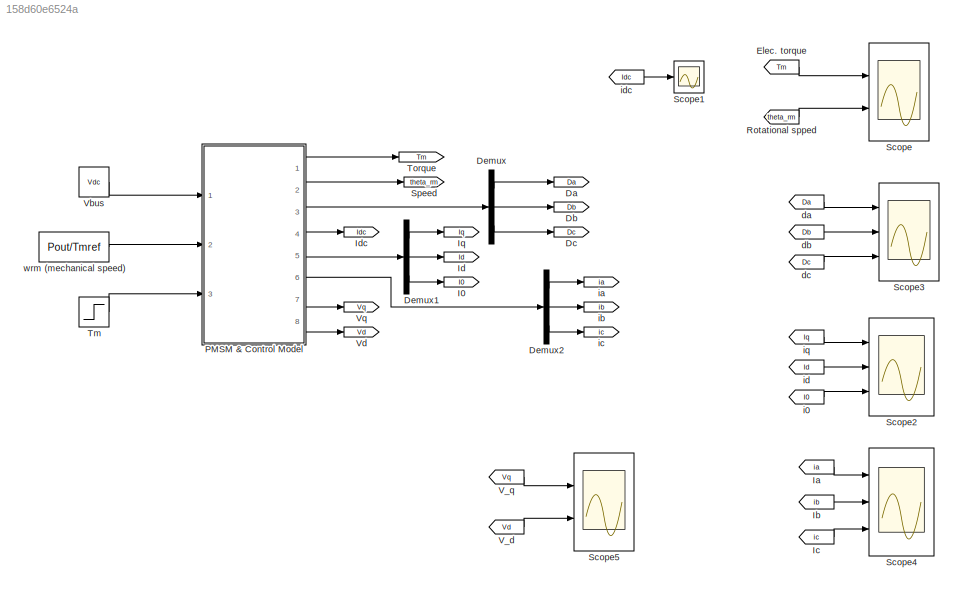
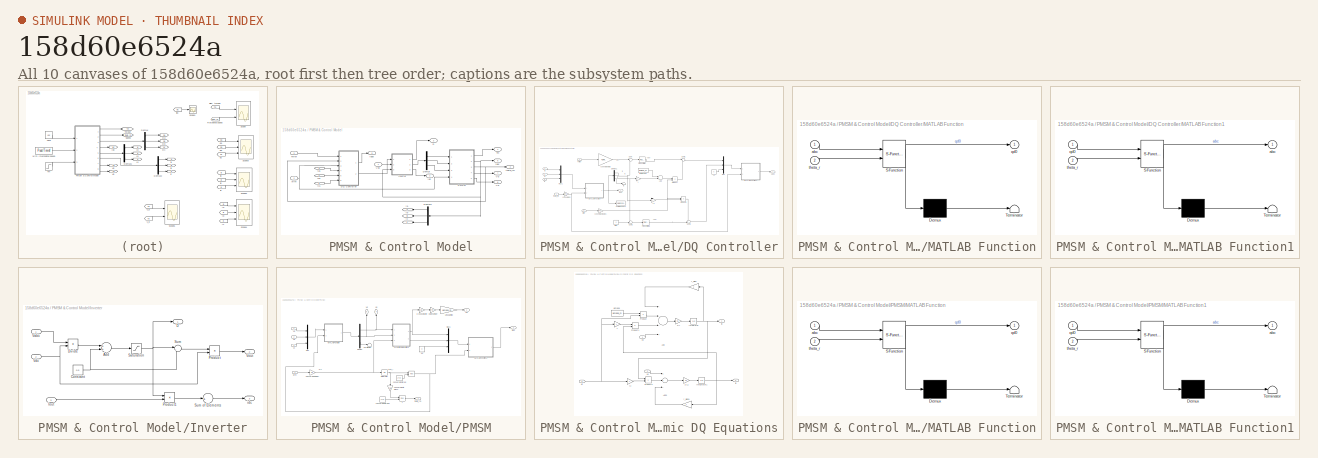
[diagram: thumbnail index - all 10 canvases of the model, root first then tree order]
MODEL slx_158d60e6524a
KIND model
CONFIG AbsTol = auto
CONFIG FixedStep = auto
CONFIG MaxStep = 1e-3
CONFIG MinStep = auto
CONFIG RelTol = 1e-3
CONFIG SampleTimeConstraint = Unconstrained
CONFIG Solver = ode45
CONFIG SolverMode = Auto
CONFIG SolverName = ode45
CONFIG StartTime = 0.0
CONFIG StopTime = 2
BLOCK [Goto] Da
  GotoTag = Da
BLOCK [Goto] Db
  GotoTag = Db
BLOCK [Goto] Dc
  GotoTag = Dc
BLOCK [Demux] Demux
  DisplayOption = bar
  Outputs = 3
  Ports = [1, 3]
BLOCK [Demux] Demux1
  DisplayOption = bar
  Outputs = 3
  Ports = [1, 3]
BLOCK [Demux] Demux2
  DisplayOption = bar
  Outputs = 3
  Ports = [1, 3]
BLOCK [From] Elec. torque
  GotoTag = Tm
BLOCK [Goto] I0
  GotoTag = I0
BLOCK [From] Ia
  GotoTag = ia
BLOCK [From] Ib
  GotoTag = ib
BLOCK [From] Ic
  GotoTag = ic
BLOCK [Goto] Id
  GotoTag = Id
BLOCK [Goto] Idc
  GotoTag = Idc
BLOCK [Goto] Iq
  GotoTag = Iq
BLOCK [SubSystem] PMSM & Control Model
  Ports = [3, 8]
  RequestExecContextInheritance = off
  Variant = off
BLOCK [Outport] PMSM & Control Model/D
  IconDisplay = Port number
  Port = 3
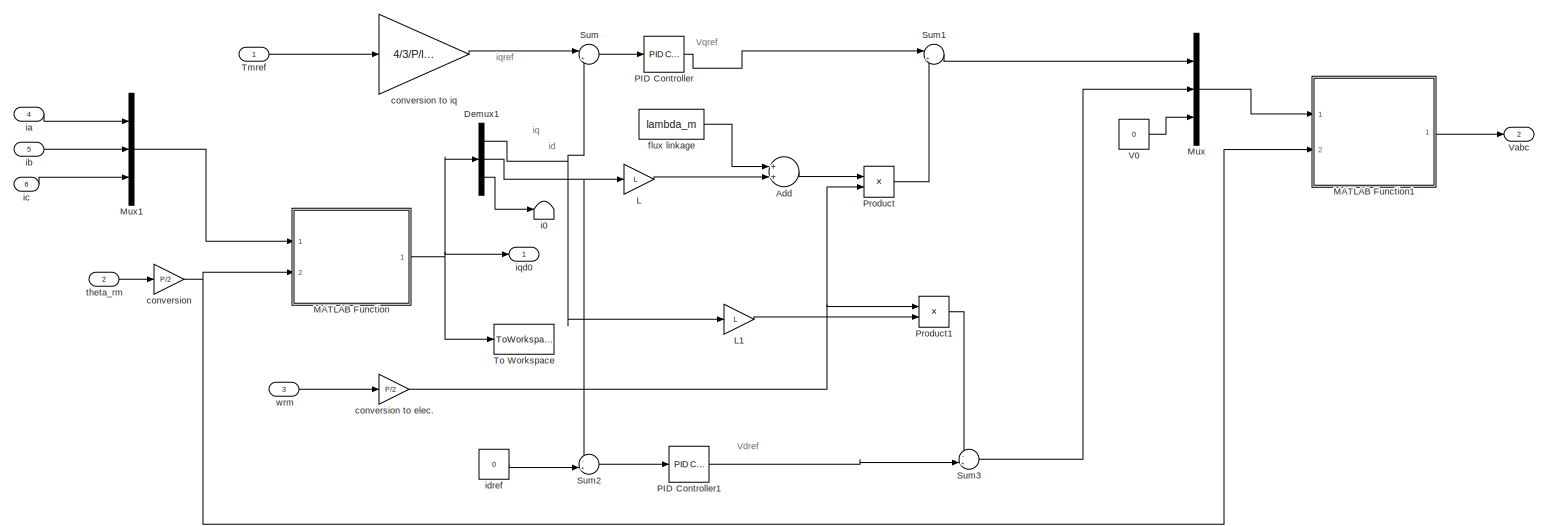
[diagram: PMSM & Control Model/DQ Controller - part 1/1, most of the canvas]
BLOCK [SubSystem] PMSM & Control Model/DQ Controller
  Ports = [6, 2]
  RequestExecContextInheritance = off
  Variant = off
BLOCK [Sum] PMSM & Control Model/DQ Controller/Add
  InputSameDT = off
  OutDataTypeStr = Inherit: Inherit via internal rule
  Ports = [2, 1]
  SaturateOnIntegerOverflow = off
BLOCK [Demux] PMSM & Control Model/DQ Controller/Demux1
  DisplayOption = bar
  Outputs = [1 1 1]
  Ports = [1, 3]
BLOCK [Gain] PMSM & Control Model/DQ Controller/L
  Gain = L
  OutDataTypeStr = Inherit: Inherit via internal rule
  ParamDataTypeStr = Inherit: Inherit via internal rule
  SaturateOnIntegerOverflow = off
BLOCK [Gain] PMSM & Control Model/DQ Controller/L1
  Gain = L
  OutDataTypeStr = Inherit: Inherit via internal rule
  ParamDataTypeStr = Inherit: Inherit via internal rule
  SaturateOnIntegerOverflow = off
BLOCK [SubSystem] PMSM & Control Model/DQ Controller/MATLAB Function
  ErrorFcn = Stateflow.Translate.translate
  PermitHierarchicalResolution = ExplicitOnly
  Ports = [2, 1]
  RequestExecContextInheritance = off
  SFBlockType = MATLAB Function
  TreatAsAtomicUnit = on
  Variant = off
BLOCK [Demux] PMSM & Control Model/DQ Controller/MATLAB Function/ Demux 
  Outputs = 1
  Ports = [1, 1]
BLOCK [S-Function] PMSM & Control Model/DQ Controller/MATLAB Function/ SFunction 
  EnableBusSupport = on
  FunctionName = sf_sfun
  PortCounts = [2 2]
  Ports = [2, 2]
  SFunctionDeploymentMode = off
  Tag = Stateflow S-Function pmsm_dynamic 2
BLOCK [Terminator] PMSM & Control Model/DQ Controller/MATLAB Function/ Terminator 
BLOCK [Inport] PMSM & Control Model/DQ Controller/MATLAB Function/abc
  IconDisplay = Port number
BLOCK [Outport] PMSM & Control Model/DQ Controller/MATLAB Function/qd0
  IconDisplay = Port number
BLOCK [Inport] PMSM & Control Model/DQ Controller/MATLAB Function/theta_r
  IconDisplay = Port number
  Port = 2
BLOCK [SubSystem] PMSM & Control Model/DQ Controller/MATLAB Function1
  ErrorFcn = Stateflow.Translate.translate
  PermitHierarchicalResolution = ExplicitOnly
  Ports = [2, 1]
  RequestExecContextInheritance = off
  SFBlockType = MATLAB Function
  TreatAsAtomicUnit = on
  Variant = off
BLOCK [Demux] PMSM & Control Model/DQ Controller/MATLAB Function1/ Demux 
  Outputs = 1
  Ports = [1, 1]
BLOCK [S-Function] PMSM & Control Model/DQ Controller/MATLAB Function1/ SFunction 
  EnableBusSupport = on
  FunctionName = sf_sfun
  PortCounts = [2 2]
  Ports = [2, 2]
  SFunctionDeploymentMode = off
  Tag = Stateflow S-Function pmsm_dynamic 1
BLOCK [Terminator] PMSM & Control Model/DQ Controller/MATLAB Function1/ Terminator 
BLOCK [Outport] PMSM & Control Model/DQ Controller/MATLAB Function1/abc
  IconDisplay = Port number
BLOCK [Inport] PMSM & Control Model/DQ Controller/MATLAB Function1/qd0
  IconDisplay = Port number
BLOCK [Inport] PMSM & Control Model/DQ Controller/MATLAB Function1/theta_r
  IconDisplay = Port number
  Port = 2
BLOCK [Mux] PMSM & Control Model/DQ Controller/Mux
  DisplayOption = bar
  Inputs = [1 1 1]
  Ports = [3, 1]
BLOCK [Mux] PMSM & Control Model/DQ Controller/Mux1
  DisplayOption = bar
  Inputs = [1 1 1]
  Ports = [3, 1]
BLOCK [Reference] PMSM & Control Model/DQ Controller/PID Controller  REF=simulink/Continuous/PID Controller
  Ports = [1, 1]
  SourceBlock = simulink/Continuous/PID Controller
  SourceType = PID 1dof
BLOCK [Reference] PMSM & Control Model/DQ Controller/PID Controller1  REF=simulink/Continuous/PID Controller
  Ports = [1, 1]
  SourceBlock = simulink/Continuous/PID Controller
  SourceType = PID 1dof
BLOCK [Product] PMSM & Control Model/DQ Controller/Product
  InputSameDT = off
  OutDataTypeStr = Inherit: Inherit via internal rule
  Ports = [2, 1]
  RndMeth = Floor
  SaturateOnIntegerOverflow = off
BLOCK [Product] PMSM & Control Model/DQ Controller/Product1
  InputSameDT = off
  OutDataTypeStr = Inherit: Inherit via internal rule
  Ports = [2, 1]
  RndMeth = Floor
  SaturateOnIntegerOverflow = off
BLOCK [Sum] PMSM & Control Model/DQ Controller/Sum
  IconShape = round
  InputSameDT = off
  Inputs = |+-
  OutDataTypeStr = Inherit: Inherit via internal rule
  Ports = [2, 1]
  SaturateOnIntegerOverflow = off
BLOCK [Sum] PMSM & Control Model/DQ Controller/Sum1
  IconShape = round
  InputSameDT = off
  Inputs = |++
  OutDataTypeStr = Inherit: Inherit via internal rule
  Ports = [2, 1]
  SaturateOnIntegerOverflow = off
BLOCK [Sum] PMSM & Control Model/DQ Controller/Sum2
  IconShape = round
  InputSameDT = off
  Inputs = -+|
  OutDataTypeStr = Inherit: Inherit via internal rule
  Ports = [2, 1]
  SaturateOnIntegerOverflow = off
BLOCK [Sum] PMSM & Control Model/DQ Controller/Sum3
  IconShape = round
  InputSameDT = off
  Inputs = -+|
  OutDataTypeStr = Inherit: Inherit via internal rule
  Ports = [2, 1]
  SaturateOnIntegerOverflow = off
BLOCK [Inport] PMSM & Control Model/DQ Controller/Tmref
  IconDisplay = Port number
BLOCK [ToWorkspace] PMSM & Control Model/DQ Controller/To Workspace
  FixptAsFi = on
  MaxDataPoints = inf
  Ports = [1]
  SampleTime = -1
  Save2DSignal = 3-D array (concatenate along third dimension)
  SaveFormat = Structure
  VariableName = simout
BLOCK [Constant] PMSM & Control Model/DQ Controller/V0
  Value = 0
BLOCK [Outport] PMSM & Control Model/DQ Controller/Vabc
  IconDisplay = Port number
  Port = 2
BLOCK [Gain] PMSM & Control Model/DQ Controller/conversion 
  Gain = P/2
  OutDataTypeStr = Inherit: Inherit via internal rule
  ParamDataTypeStr = Inherit: Inherit via internal rule
  SaturateOnIntegerOverflow = off
BLOCK [Gain] PMSM & Control Model/DQ Controller/conversion to elec.
  Gain = P/2
  OutDataTypeStr = Inherit: Inherit via internal rule
  ParamDataTypeStr = Inherit: Inherit via internal rule
  SaturateOnIntegerOverflow = off
BLOCK [Gain] PMSM & Control Model/DQ Controller/conversion to iq
  Gain = 4/3/P/lambda_m
  OutDataTypeStr = Inherit: Inherit via internal rule
  ParamDataTypeStr = Inherit: Inherit via internal rule
  SaturateOnIntegerOverflow = off
BLOCK [Constant] PMSM & Control Model/DQ Controller/flux linkage
  Value = lambda_m
BLOCK [Terminator] PMSM & Control Model/DQ Controller/i0
BLOCK [Inport] PMSM & Control Model/DQ Controller/ia
  IconDisplay = Port number
  Port = 4
BLOCK [Inport] PMSM & Control Model/DQ Controller/ib
  IconDisplay = Port number
  Port = 5
BLOCK [Inport] PMSM & Control Model/DQ Controller/ic
  IconDisplay = Port number
  Port = 6
BLOCK [Constant] PMSM & Control Model/DQ Controller/idref
  Value = 0
BLOCK [Outport] PMSM & Control Model/DQ Controller/iqd0
  IconDisplay = Port number
BLOCK [Inport] PMSM & Control Model/DQ Controller/theta_rm
  IconDisplay = Port number
  Port = 2
BLOCK [Inport] PMSM & Control Model/DQ Controller/wrm
  IconDisplay = Port number
  Port = 3
BLOCK [Demux] PMSM & Control Model/Demux
  DisplayOption = bar
  Outputs = 3
  Ports = [1, 3]
BLOCK [Demux] PMSM & Control Model/Demux1
  DisplayOption = bar
  Outputs = 3
  Ports = [1, 3]
BLOCK [SubSystem] PMSM & Control Model/Inverter
  Ports = [3, 3]
  RequestExecContextInheritance = off
  Variant = off
BLOCK [Sum] PMSM & Control Model/Inverter/Add
  InputSameDT = off
  OutDataTypeStr = Inherit: Inherit via internal rule
  Ports = [2, 1]
  SaturateOnIntegerOverflow = off
BLOCK [Constant] PMSM & Control Model/Inverter/Constant
  Value = 0.5
BLOCK [Outport] PMSM & Control Model/Inverter/D
  IconDisplay = Port number
BLOCK [Product] PMSM & Control Model/Inverter/Divide
  InputSameDT = off
  Inputs = */
  OutDataTypeStr = Inherit: Inherit via internal rule
  Ports = [2, 1]
  RndMeth = Floor
  SaturateOnIntegerOverflow = off
BLOCK [Inport] PMSM & Control Model/Inverter/Iout 
  IconDisplay = Port number
  Port = 3
BLOCK [Product] PMSM & Control Model/Inverter/Product
  InputSameDT = off
  OutDataTypeStr = Inherit: Inherit via internal rule
  Ports = [2, 1]
  RndMeth = Floor
  SaturateOnIntegerOverflow = off
BLOCK [Product] PMSM & Control Model/Inverter/Product1
  InputSameDT = off
  OutDataTypeStr = Inherit: Inherit via internal rule
  Ports = [2, 1]
  RndMeth = Floor
  SaturateOnIntegerOverflow = off
BLOCK [Saturate] PMSM & Control Model/Inverter/Saturation
  InputPortMap = u0
  LowerLimit = 0
  Ports = [1, 1]
  UpperLimit = 1
BLOCK [Sum] PMSM & Control Model/Inverter/Sum
  IconShape = round
  InputSameDT = off
  Inputs = |+-
  OutDataTypeStr = Inherit: Inherit via internal rule
  Ports = [2, 1]
  SaturateOnIntegerOverflow = off
BLOCK [Sum] PMSM & Control Model/Inverter/Sum of Elements
  InputSameDT = off
  Inputs = +
  OutDataTypeStr = Inherit: Inherit via internal rule
  Ports = [1, 1]
  SaturateOnIntegerOverflow = off
BLOCK [Inport] PMSM & Control Model/Inverter/Vabc
  IconDisplay = Port number
BLOCK [Inport] PMSM & Control Model/Inverter/Vdc
  IconDisplay = Port number
  Port = 2
BLOCK [Outport] PMSM & Control Model/Inverter/Vout
  IconDisplay = Port number
  Port = 2
BLOCK [Outport] PMSM & Control Model/Inverter/idc
  IconDisplay = Port number
  Port = 3
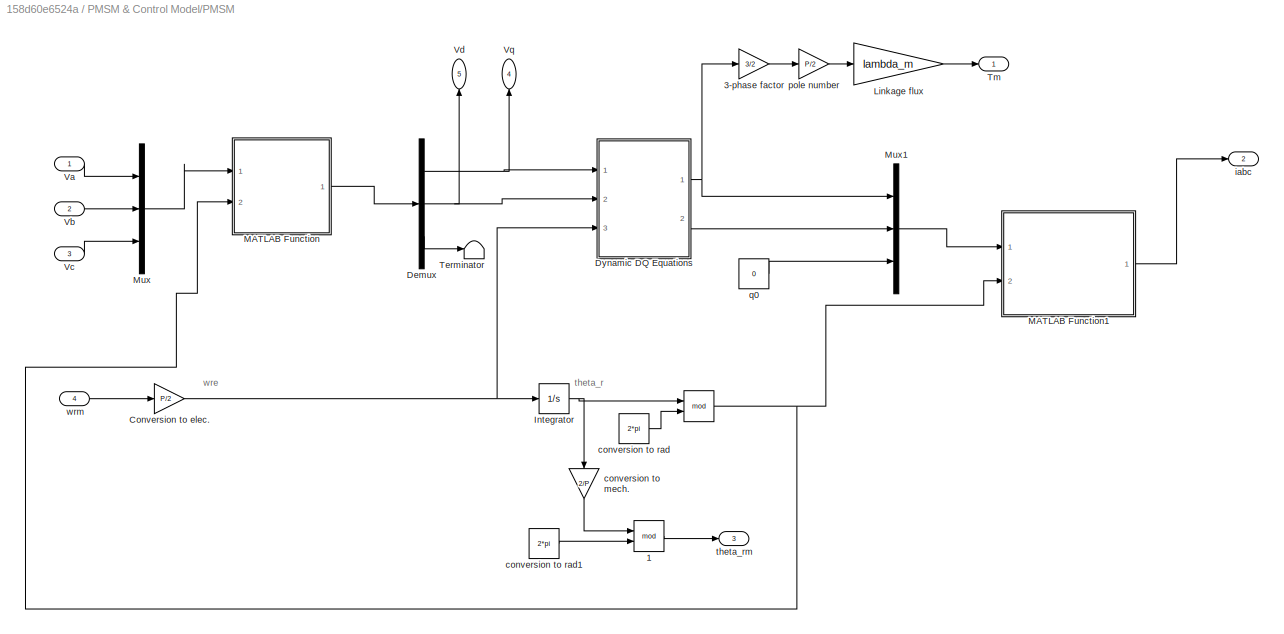
BLOCK [SubSystem] PMSM & Control Model/PMSM
  Ports = [4, 5]
  RequestExecContextInheritance = off
  Variant = off
BLOCK [Math] PMSM & Control Model/PMSM/  
  Operator = mod
  Ports = [2, 1]
BLOCK [Math] PMSM & Control Model/PMSM/  1
  Operator = mod
  Ports = [2, 1]
BLOCK [Gain] PMSM & Control Model/PMSM/3-phase factor
  Gain = 3/2
  OutDataTypeStr = Inherit: Inherit via internal rule
  ParamDataTypeStr = Inherit: Inherit via internal rule
  SaturateOnIntegerOverflow = off
BLOCK [Gain] PMSM & Control Model/PMSM/Conversion to elec.
  Gain = P/2
  OutDataTypeStr = Inherit: Inherit via internal rule
  ParamDataTypeStr = Inherit: Inherit via internal rule
  SaturateOnIntegerOverflow = off
BLOCK [Demux] PMSM & Control Model/PMSM/Demux
  DisplayOption = bar
  Outputs = 3
  Ports = [1, 3]
BLOCK [SubSystem] PMSM & Control Model/PMSM/Dynamic DQ Equations
  Ports = [3, 2]
  RequestExecContextInheritance = off
  Variant = off
BLOCK [Gain] PMSM & Control Model/PMSM/Dynamic DQ Equations/1//L
  Gain = 1/L
  OutDataTypeStr = Inherit: Inherit via internal rule
  ParamDataTypeStr = Inherit: Inherit via internal rule
  SaturateOnIntegerOverflow = off
BLOCK [Gain] PMSM & Control Model/PMSM/Dynamic DQ Equations/1//L1
  Gain = 1/L
  OutDataTypeStr = Inherit: Inherit via internal rule
  ParamDataTypeStr = Inherit: Inherit via internal rule
  SaturateOnIntegerOverflow = off
BLOCK [Sum] PMSM & Control Model/PMSM/Dynamic DQ Equations/Add
  InputSameDT = off
  Inputs = ---+
  OutDataTypeStr = Inherit: Inherit via internal rule
  Ports = [4, 1]
  SaturateOnIntegerOverflow = off
BLOCK [Sum] PMSM & Control Model/PMSM/Dynamic DQ Equations/Add1
  InputSameDT = off
  Inputs = ++-
  OutDataTypeStr = Inherit: Inherit via internal rule
  Ports = [3, 1]
  SaturateOnIntegerOverflow = off
BLOCK [Integrator] PMSM & Control Model/PMSM/Dynamic DQ Equations/Integrator
  Ports = [1, 1]
BLOCK [Integrator] PMSM & Control Model/PMSM/Dynamic DQ Equations/Integrator1
  Ports = [1, 1]
BLOCK [Gain] PMSM & Control Model/PMSM/Dynamic DQ Equations/L
  Gain = L
  OutDataTypeStr = Inherit: Inherit via internal rule
  ParamDataTypeStr = Inherit: Inherit via internal rule
  SaturateOnIntegerOverflow = off
BLOCK [Gain] PMSM & Control Model/PMSM/Dynamic DQ Equations/L1
  Gain = L
  OutDataTypeStr = Inherit: Inherit via internal rule
  ParamDataTypeStr = Inherit: Inherit via internal rule
  SaturateOnIntegerOverflow = off
BLOCK [Product] PMSM & Control Model/PMSM/Dynamic DQ Equations/Product
  InputSameDT = off
  OutDataTypeStr = Inherit: Inherit via internal rule
  Ports = [2, 1]
  RndMeth = Floor
  SaturateOnIntegerOverflow = off
BLOCK [Product] PMSM & Control Model/PMSM/Dynamic DQ Equations/Product1
  InputSameDT = off
  OutDataTypeStr = Inherit: Inherit via internal rule
  Ports = [2, 1]
  RndMeth = Floor
  SaturateOnIntegerOverflow = off
BLOCK [Product] PMSM & Control Model/PMSM/Dynamic DQ Equations/Product2
  InputSameDT = off
  OutDataTypeStr = Inherit: Inherit via internal rule
  Ports = [2, 1]
  RndMeth = Floor
  SaturateOnIntegerOverflow = off
BLOCK [Inport] PMSM & Control Model/PMSM/Dynamic DQ Equations/Vd
  IconDisplay = Port number
  Port = 2
BLOCK [Inport] PMSM & Control Model/PMSM/Dynamic DQ Equations/Vq
  IconDisplay = Port number
BLOCK [Outport] PMSM & Control Model/PMSM/Dynamic DQ Equations/id
  IconDisplay = Port number
  Port = 2
BLOCK [Outport] PMSM & Control Model/PMSM/Dynamic DQ Equations/iq
  IconDisplay = Port number
BLOCK [Constant] PMSM & Control Model/PMSM/Dynamic DQ Equations/lambda
  Value = lambda_m
BLOCK [Gain] PMSM & Control Model/PMSM/Dynamic DQ Equations/r_wind
  Gain = r
  OutDataTypeStr = Inherit: Inherit via internal rule
  ParamDataTypeStr = Inherit: Inherit via internal rule
  SaturateOnIntegerOverflow = off
BLOCK [Gain] PMSM & Control Model/PMSM/Dynamic DQ Equations/r_wind1
  Gain = r
  OutDataTypeStr = Inherit: Inherit via internal rule
  ParamDataTypeStr = Inherit: Inherit via internal rule
  SaturateOnIntegerOverflow = off
BLOCK [Inport] PMSM & Control Model/PMSM/Dynamic DQ Equations/wr
  IconDisplay = Port number
  Port = 3
BLOCK [Integrator] PMSM & Control Model/PMSM/Integrator
  Ports = [1, 1]
BLOCK [Gain] PMSM & Control Model/PMSM/Linkage flux
  Gain = lambda_m
  OutDataTypeStr = Inherit: Inherit via internal rule
  ParamDataTypeStr = Inherit: Inherit via internal rule
  SaturateOnIntegerOverflow = off
BLOCK [SubSystem] PMSM & Control Model/PMSM/MATLAB Function
  ErrorFcn = Stateflow.Translate.translate
  PermitHierarchicalResolution = ExplicitOnly
  Ports = [2, 1]
  RequestExecContextInheritance = off
  SFBlockType = MATLAB Function
  TreatAsAtomicUnit = on
  Variant = off
BLOCK [Demux] PMSM & Control Model/PMSM/MATLAB Function/ Demux 
  Outputs = 1
  Ports = [1, 1]
BLOCK [S-Function] PMSM & Control Model/PMSM/MATLAB Function/ SFunction 
  EnableBusSupport = on
  FunctionName = sf_sfun
  PortCounts = [2 2]
  Ports = [2, 2]
  SFunctionDeploymentMode = off
  Tag = Stateflow S-Function pmsm_dynamic 3
BLOCK [Terminator] PMSM & Control Model/PMSM/MATLAB Function/ Terminator 
BLOCK [Inport] PMSM & Control Model/PMSM/MATLAB Function/abc
  IconDisplay = Port number
BLOCK [Outport] PMSM & Control Model/PMSM/MATLAB Function/qd0
  IconDisplay = Port number
BLOCK [Inport] PMSM & Control Model/PMSM/MATLAB Function/theta_r
  IconDisplay = Port number
  Port = 2
BLOCK [SubSystem] PMSM & Control Model/PMSM/MATLAB Function1
  ErrorFcn = Stateflow.Translate.translate
  PermitHierarchicalResolution = ExplicitOnly
  Ports = [2, 1]
  RequestExecContextInheritance = off
  SFBlockType = MATLAB Function
  TreatAsAtomicUnit = on
  Variant = off
BLOCK [Demux] PMSM & Control Model/PMSM/MATLAB Function1/ Demux 
  Outputs = 1
  Ports = [1, 1]
BLOCK [S-Function] PMSM & Control Model/PMSM/MATLAB Function1/ SFunction 
  EnableBusSupport = on
  FunctionName = sf_sfun
  PortCounts = [2 2]
  Ports = [2, 2]
  SFunctionDeploymentMode = off
  Tag = Stateflow S-Function pmsm_dynamic 4
BLOCK [Terminator] PMSM & Control Model/PMSM/MATLAB Function1/ Terminator 
BLOCK [Outport] PMSM & Control Model/PMSM/MATLAB Function1/abc
  IconDisplay = Port number
BLOCK [Inport] PMSM & Control Model/PMSM/MATLAB Function1/qd0
  IconDisplay = Port number
BLOCK [Inport] PMSM & Control Model/PMSM/MATLAB Function1/theta_r
  IconDisplay = Port number
  Port = 2
BLOCK [Mux] PMSM & Control Model/PMSM/Mux
  DisplayOption = bar
  Inputs = 3
  Ports = [3, 1]
BLOCK [Mux] PMSM & Control Model/PMSM/Mux1
  DisplayOption = bar
  Inputs = 3
  Ports = [3, 1]
BLOCK [Terminator] PMSM & Control Model/PMSM/Terminator
BLOCK [Outport] PMSM & Control Model/PMSM/Tm
  IconDisplay = Port number
BLOCK [Inport] PMSM & Control Model/PMSM/Va
  IconDisplay = Port number
BLOCK [Inport] PMSM & Control Model/PMSM/Vb
  IconDisplay = Port number
  Port = 2
BLOCK [Inport] PMSM & Control Model/PMSM/Vc
  IconDisplay = Port number
  Port = 3
BLOCK [Outport] PMSM & Control Model/PMSM/Vd
  IconDisplay = Port number
  Port = 5
BLOCK [Outport] PMSM & Control Model/PMSM/Vq
  IconDisplay = Port number
  Port = 4
BLOCK [Gain] PMSM & Control Model/PMSM/conversion to mech.
  Gain = 2/P
  OutDataTypeStr = Inherit: Inherit via internal rule
  ParamDataTypeStr = Inherit: Inherit via internal rule
  SaturateOnIntegerOverflow = off
BLOCK [Constant] PMSM & Control Model/PMSM/conversion to rad
  Value = 2*pi
BLOCK [Constant] PMSM & Control Model/PMSM/conversion to rad1
  Value = 2*pi
BLOCK [Outport] PMSM & Control Model/PMSM/iabc 
  IconDisplay = Port number
  Port = 2
BLOCK [Gain] PMSM & Control Model/PMSM/pole number
  Gain = P/2
  OutDataTypeStr = Inherit: Inherit via internal rule
  ParamDataTypeStr = Inherit: Inherit via internal rule
  SaturateOnIntegerOverflow = off
BLOCK [Constant] PMSM & Control Model/PMSM/q0
  Value = 0
BLOCK [Outport] PMSM & Control Model/PMSM/theta_rm
  IconDisplay = Port number
  Port = 3
BLOCK [Inport] PMSM & Control Model/PMSM/wrm
  IconDisplay = Port number
  Port = 4
BLOCK [Outport] PMSM & Control Model/Tm
  IconDisplay = Port number
BLOCK [Inport] PMSM & Control Model/Tmref
  IconDisplay = Port number
  Port = 3
BLOCK [Outport] PMSM & Control Model/Vd
  IconDisplay = Port number
  Port = 8
BLOCK [Inport] PMSM & Control Model/Vdc
  IconDisplay = Port number
BLOCK [Outport] PMSM & Control Model/Vq
  IconDisplay = Port number
  Port = 7
BLOCK [Goto] PMSM & Control Model/ia
  GotoTag = ia
BLOCK [From] PMSM & Control Model/ia1
  GotoTag = ia
BLOCK [Outport] PMSM & Control Model/iabc
  IconDisplay = Port number
  Port = 6
BLOCK [Goto] PMSM & Control Model/ib
  GotoTag = ib
BLOCK [From] PMSM & Control Model/ib1
  GotoTag = ib
BLOCK [Goto] PMSM & Control Model/ic
  GotoTag = ic
BLOCK [From] PMSM & Control Model/ic1
  GotoTag = ic
BLOCK [Outport] PMSM & Control Model/idc
  IconDisplay = Port number
  Port = 4
BLOCK [Outport] PMSM & Control Model/iqd0
  IconDisplay = Port number
  Port = 5
BLOCK [Outport] PMSM & Control Model/theta_rm
  IconDisplay = Port number
  Port = 2
BLOCK [Inport] PMSM & Control Model/wrm
  IconDisplay = Port number
  Port = 2
BLOCK [From] Rotational spped
  GotoTag = theta_rm
BLOCK [Scope] Scope
  NumInputPorts = 2
  Ports = [2]
  ScopeSpecificationString = Simulink.scopes.TimeScopeBlockCfg('CurrentConfiguration', extmgr.ConfigurationSet(extmgr.Configuration('Core','General UI',true),extmgr.Configuration('Core','Source UI',true),extmgr.Configuration('Sources','WiredSimulink',true),extmgr.Configuration('Visuals','Time Domain',true,'SerializedDisplays',{struct('MinYLimReal','-30.00000','MaxYLimReal','270.00000','YLabelReal','','MinYLimMag','0.00000','M...<+2047ch>
BLOCK [Scope] Scope1
  Ports = [1]
  ScopeSpecificationString = Simulink.scopes.TimeScopeBlockCfg('CurrentConfiguration', extmgr.ConfigurationSet(extmgr.Configuration('Core','General UI',true),extmgr.Configuration('Core','Source UI',true),extmgr.Configuration('Sources','WiredSimulink',true,'DataLoggingVariableName','ScopeData1','DataLoggingLimitDataPoints',true,'DataLoggingSaveFormat','Array','DataLoggingDecimation','1','DataLoggingDecimateData',true),extmgr.C...<+1498ch>
BLOCK [Scope] Scope2
  NumInputPorts = 3
  Ports = [3]
  ScopeSpecificationString = Simulink.scopes.TimeScopeBlockCfg('CurrentConfiguration', extmgr.ConfigurationSet(extmgr.Configuration('Core','General UI',true),extmgr.Configuration('Core','Source UI',true),extmgr.Configuration('Sources','WiredSimulink',true,'DataLoggingVariableName','ScopeData2','DataLoggingLimitDataPoints',true,'DataLoggingSaveFormat','Array','DataLoggingDecimation','1','DataLoggingDecimateData',true),extmgr.C...<+2932ch>
BLOCK [Scope] Scope3
  NumInputPorts = 3
  Ports = [3]
  ScopeSpecificationString = Simulink.scopes.TimeScopeBlockCfg('CurrentConfiguration', extmgr.ConfigurationSet(extmgr.Configuration('Core','General UI',true),extmgr.Configuration('Core','Source UI',true),extmgr.Configuration('Sources','WiredSimulink',true,'DataLoggingVariableName','ScopeData3','DataLoggingLimitDataPoints',true,'DataLoggingSaveFormat','Array','DataLoggingDecimation','1','DataLoggingDecimateData',true),extmgr.C...<+2910ch>
BLOCK [Scope] Scope4
  NumInputPorts = 3
  Ports = [3]
  ScopeSpecificationString = Simulink.scopes.TimeScopeBlockCfg('CurrentConfiguration', extmgr.ConfigurationSet(extmgr.Configuration('Core','General UI',true),extmgr.Configuration('Core','Source UI',true),extmgr.Configuration('Sources','WiredSimulink',true,'DataLoggingVariableName','ScopeData4','DataLoggingLimitDataPoints',true,'DataLoggingSaveFormat','Array','DataLoggingDecimation','1','DataLoggingDecimateData',true),extmgr.C...<+2925ch>
BLOCK [Scope] Scope5
  NumInputPorts = 2
  Ports = [2]
  ScopeSpecificationString = Simulink.scopes.TimeScopeBlockCfg('CurrentConfiguration', extmgr.ConfigurationSet(extmgr.Configuration('Core','General UI',true),extmgr.Configuration('Core','Source UI',true),extmgr.Configuration('Sources','WiredSimulink',true,'DataLoggingVariableName','ScopeData5'),extmgr.Configuration('Visuals','Time Domain',true,'SerializedDisplays',{struct('MinYLimReal','7.21667','MaxYLimReal','39.21667','YLab...<+2102ch>
BLOCK [Goto] Speed
  GotoTag = theta_rm
BLOCK [Step] Tm
  After = Tmref
  SampleTime = 0
  Time = 0.4
BLOCK [Goto] Torque
  GotoTag = Tm
BLOCK [From] V_d
  GotoTag = Vd
BLOCK [From] V_q
  GotoTag = Vq
BLOCK [Constant] Vbus
  Value = Vdc
BLOCK [Goto] Vd
  GotoTag = Vd
BLOCK [Goto] Vq
  GotoTag = Vq
BLOCK [From] da
  GotoTag = Da
BLOCK [From] db
  GotoTag = Db
BLOCK [From] dc
  GotoTag = Dc
BLOCK [From] i0
  GotoTag = I0
BLOCK [Goto] ia
  GotoTag = ia
BLOCK [Goto] ib
  GotoTag = ib
BLOCK [Goto] ic
  GotoTag = ic
BLOCK [From] id
  GotoTag = Id
BLOCK [From] idc
  GotoTag = Idc
BLOCK [From] iq
  GotoTag = Iq
BLOCK [Constant] wrm (mechanical speed)
  Value = Pout/Tmref
ANNOTATION PMSM & Control Model/DQ Controller: Vdref
ANNOTATION PMSM & Control Model/DQ Controller: Vqref
ANNOTATION PMSM & Control Model/DQ Controller: id
ANNOTATION PMSM & Control Model/DQ Controller: iq
ANNOTATION PMSM & Control Model/DQ Controller: iqref
ANNOTATION PMSM & Control Model/PMSM: theta_r
ANNOTATION PMSM & Control Model/PMSM: wre
LINE Demux1:1 -> Iq:1
LINE Demux1:2 -> Id:1
LINE Demux1:3 -> I0:1
LINE Demux2:1 -> ia:1
LINE Demux2:2 -> ib:1
LINE Demux2:3 -> ic:1
LINE Demux:1 -> Da:1
LINE Demux:2 -> Db:1
LINE Demux:3 -> Dc:1
LINE Elec. torque:1 -> Scope:1
LINE Ia:1 -> Scope4:1
LINE Ib:1 -> Scope4:2
LINE Ic:1 -> Scope4:3
LINE PMSM & Control Model/DQ Controller/Add:1 -> PMSM & Control Model/DQ Controller/Product:1
NET PMSM & Control Model/DQ Controller/Demux1:1 -> PMSM & Control Model/DQ Controller/L1:1, PMSM & Control Model/DQ Controller/Sum:2
NET PMSM & Control Model/DQ Controller/Demux1:2 -> PMSM & Control Model/DQ Controller/L:1, PMSM & Control Model/DQ Controller/Sum2:1
LINE PMSM & Control Model/DQ Controller/Demux1:3 -> PMSM & Control Model/DQ Controller/i0:1
LINE PMSM & Control Model/DQ Controller/L1:1 -> PMSM & Control Model/DQ Controller/Product1:2
LINE PMSM & Control Model/DQ Controller/L:1 -> PMSM & Control Model/DQ Controller/Add:2
LINE PMSM & Control Model/DQ Controller/MATLAB Function1:1 -> PMSM & Control Model/DQ Controller/Vabc:1
NET PMSM & Control Model/DQ Controller/MATLAB Function:1 -> PMSM & Control Model/DQ Controller/Demux1:1, PMSM & Control Model/DQ Controller/To Workspace:1, PMSM & Control Model/DQ Controller/iqd0:1
LINE PMSM & Control Model/DQ Controller/Mux1:1 -> PMSM & Control Model/DQ Controller/MATLAB Function:1
LINE PMSM & Control Model/DQ Controller/Mux:1 -> PMSM & Control Model/DQ Controller/MATLAB Function1:1
LINE PMSM & Control Model/DQ Controller/PID Controller1:1 -> PMSM & Control Model/DQ Controller/Sum3:2
LINE PMSM & Control Model/DQ Controller/PID Controller:1 -> PMSM & Control Model/DQ Controller/Sum1:1
LINE PMSM & Control Model/DQ Controller/Product1:1 -> PMSM & Control Model/DQ Controller/Sum3:1
LINE PMSM & Control Model/DQ Controller/Product:1 -> PMSM & Control Model/DQ Controller/Sum1:2
LINE PMSM & Control Model/DQ Controller/Sum1:1 -> PMSM & Control Model/DQ Controller/Mux:1
LINE PMSM & Control Model/DQ Controller/Sum2:1 -> PMSM & Control Model/DQ Controller/PID Controller1:1
LINE PMSM & Control Model/DQ Controller/Sum3:1 -> PMSM & Control Model/DQ Controller/Mux:2
LINE PMSM & Control Model/DQ Controller/Sum:1 -> PMSM & Control Model/DQ Controller/PID Controller:1
LINE PMSM & Control Model/DQ Controller/Tmref:1 -> PMSM & Control Model/DQ Controller/conversion to iq:1
LINE PMSM & Control Model/DQ Controller/V0:1 -> PMSM & Control Model/DQ Controller/Mux:3
NET PMSM & Control Model/DQ Controller/conversion :1 -> PMSM & Control Model/DQ Controller/MATLAB Function1:2, PMSM & Control Model/DQ Controller/MATLAB Function:2
NET PMSM & Control Model/DQ Controller/conversion to elec.:1 -> PMSM & Control Model/DQ Controller/Product1:1, PMSM & Control Model/DQ Controller/Product:2
LINE PMSM & Control Model/DQ Controller/conversion to iq:1 -> PMSM & Control Model/DQ Controller/Sum:1
LINE PMSM & Control Model/DQ Controller/flux linkage:1 -> PMSM & Control Model/DQ Controller/Add:1
LINE PMSM & Control Model/DQ Controller/ia:1 -> PMSM & Control Model/DQ Controller/Mux1:1
LINE PMSM & Control Model/DQ Controller/ib:1 -> PMSM & Control Model/DQ Controller/Mux1:2
LINE PMSM & Control Model/DQ Controller/ic:1 -> PMSM & Control Model/DQ Controller/Mux1:3
LINE PMSM & Control Model/DQ Controller/idref:1 -> PMSM & Control Model/DQ Controller/Sum2:2
LINE PMSM & Control Model/DQ Controller/theta_rm:1 -> PMSM & Control Model/DQ Controller/conversion :1
LINE PMSM & Control Model/DQ Controller/wrm:1 -> PMSM & Control Model/DQ Controller/conversion to elec.:1
LINE PMSM & Control Model/DQ Controller:1 -> PMSM & Control Model/iqd0:1
LINE PMSM & Control Model/DQ Controller:2 -> PMSM & Control Model/Inverter:1
LINE PMSM & Control Model/Demux1:1 -> PMSM & Control Model/ia:1
LINE PMSM & Control Model/Demux1:2 -> PMSM & Control Model/ib:1
LINE PMSM & Control Model/Demux1:3 -> PMSM & Control Model/ic:1
LINE PMSM & Control Model/Demux:1 -> PMSM & Control Model/PMSM:1
LINE PMSM & Control Model/Demux:2 -> PMSM & Control Model/PMSM:2
LINE PMSM & Control Model/Demux:3 -> PMSM & Control Model/PMSM:3
LINE PMSM & Control Model/Inverter/Add:1 -> PMSM & Control Model/Inverter/Saturation:1
NET PMSM & Control Model/Inverter/Constant:1 -> PMSM & Control Model/Inverter/Add:2, PMSM & Control Model/Inverter/Sum:2
LINE PMSM & Control Model/Inverter/Divide:1 -> PMSM & Control Model/Inverter/Add:1
LINE PMSM & Control Model/Inverter/Iout :1 -> PMSM & Control Model/Inverter/Product1:2
LINE PMSM & Control Model/Inverter/Product1:1 -> PMSM & Control Model/Inverter/Sum of Elements:1
LINE PMSM & Control Model/Inverter/Product:1 -> PMSM & Control Model/Inverter/Vout:1
NET PMSM & Control Model/Inverter/Saturation:1 -> PMSM & Control Model/Inverter/D:1, PMSM & Control Model/Inverter/Product1:1, PMSM & Control Model/Inverter/Sum:1
LINE PMSM & Control Model/Inverter/Sum of Elements:1 -> PMSM & Control Model/Inverter/idc:1
LINE PMSM & Control Model/Inverter/Sum:1 -> PMSM & Control Model/Inverter/Product:1
LINE PMSM & Control Model/Inverter/Vabc:1 -> PMSM & Control Model/Inverter/Divide:1
NET PMSM & Control Model/Inverter/Vdc:1 -> PMSM & Control Model/Inverter/Divide:2, PMSM & Control Model/Inverter/Product:2
LINE PMSM & Control Model/Inverter:1 -> PMSM & Control Model/D:1
LINE PMSM & Control Model/Inverter:2 -> PMSM & Control Model/Demux:1
LINE PMSM & Control Model/Inverter:3 -> PMSM & Control Model/idc:1
LINE PMSM & Control Model/PMSM/  1:1 -> PMSM & Control Model/PMSM/theta_rm:1
NET PMSM & Control Model/PMSM/  :1 -> PMSM & Control Model/PMSM/MATLAB Function1:2, PMSM & Control Model/PMSM/MATLAB Function:2
LINE PMSM & Control Model/PMSM/3-phase factor:1 -> PMSM & Control Model/PMSM/pole number:1
NET PMSM & Control Model/PMSM/Conversion to elec.:1 -> PMSM & Control Model/PMSM/Dynamic DQ Equations:3, PMSM & Control Model/PMSM/Integrator:1
NET PMSM & Control Model/PMSM/Demux:1 -> PMSM & Control Model/PMSM/Dynamic DQ Equations:1, PMSM & Control Model/PMSM/Vq:1
NET PMSM & Control Model/PMSM/Demux:2 -> PMSM & Control Model/PMSM/Dynamic DQ Equations:2, PMSM & Control Model/PMSM/Vd:1
LINE PMSM & Control Model/PMSM/Demux:3 -> PMSM & Control Model/PMSM/Terminator:1
LINE PMSM & Control Model/PMSM/Dynamic DQ Equations/1//L1:1 -> PMSM & Control Model/PMSM/Dynamic DQ Equations/Integrator1:1
LINE PMSM & Control Model/PMSM/Dynamic DQ Equations/1//L:1 -> PMSM & Control Model/PMSM/Dynamic DQ Equations/Integrator:1
LINE PMSM & Control Model/PMSM/Dynamic DQ Equations/Add1:1 -> PMSM & Control Model/PMSM/Dynamic DQ Equations/1//L1:1
LINE PMSM & Control Model/PMSM/Dynamic DQ Equations/Add:1 -> PMSM & Control Model/PMSM/Dynamic DQ Equations/1//L:1
NET PMSM & Control Model/PMSM/Dynamic DQ Equations/Integrator1:1 -> PMSM & Control Model/PMSM/Dynamic DQ Equations/Product1:2, PMSM & Control Model/PMSM/Dynamic DQ Equations/id:1, PMSM & Control Model/PMSM/Dynamic DQ Equations/r_wind1:1
NET PMSM & Control Model/PMSM/Dynamic DQ Equations/Integrator:1 -> PMSM & Control Model/PMSM/Dynamic DQ Equations/Product2:1, PMSM & Control Model/PMSM/Dynamic DQ Equations/iq:1, PMSM & Control Model/PMSM/Dynamic DQ Equations/r_wind:1
LINE PMSM & Control Model/PMSM/Dynamic DQ Equations/L1:1 -> PMSM & Control Model/PMSM/Dynamic DQ Equations/Product2:2
LINE PMSM & Control Model/PMSM/Dynamic DQ Equations/L:1 -> PMSM & Control Model/PMSM/Dynamic DQ Equations/Product1:1
LINE PMSM & Control Model/PMSM/Dynamic DQ Equations/Product1:1 -> PMSM & Control Model/PMSM/Dynamic DQ Equations/Add:3
LINE PMSM & Control Model/PMSM/Dynamic DQ Equations/Product2:1 -> PMSM & Control Model/PMSM/Dynamic DQ Equations/Add1:2
LINE PMSM & Control Model/PMSM/Dynamic DQ Equations/Product:1 -> PMSM & Control Model/PMSM/Dynamic DQ Equations/Add:2
LINE PMSM & Control Model/PMSM/Dynamic DQ Equations/Vd:1 -> PMSM & Control Model/PMSM/Dynamic DQ Equations/Add1:1
LINE PMSM & Control Model/PMSM/Dynamic DQ Equations/Vq:1 -> PMSM & Control Model/PMSM/Dynamic DQ Equations/Add:4
LINE PMSM & Control Model/PMSM/Dynamic DQ Equations/lambda:1 -> PMSM & Control Model/PMSM/Dynamic DQ Equations/Product:1
LINE PMSM & Control Model/PMSM/Dynamic DQ Equations/r_wind1:1 -> PMSM & Control Model/PMSM/Dynamic DQ Equations/Add1:3
LINE PMSM & Control Model/PMSM/Dynamic DQ Equations/r_wind:1 -> PMSM & Control Model/PMSM/Dynamic DQ Equations/Add:1
NET PMSM & Control Model/PMSM/Dynamic DQ Equations/wr:1 -> PMSM & Control Model/PMSM/Dynamic DQ Equations/L1:1, PMSM & Control Model/PMSM/Dynamic DQ Equations/L:1, PMSM & Control Model/PMSM/Dynamic DQ Equations/Product:2
NET PMSM & Control Model/PMSM/Dynamic DQ Equations:1 -> PMSM & Control Model/PMSM/3-phase factor:1, PMSM & Control Model/PMSM/Mux1:1
LINE PMSM & Control Model/PMSM/Dynamic DQ Equations:2 -> PMSM & Control Model/PMSM/Mux1:2
NET PMSM & Control Model/PMSM/Integrator:1 -> PMSM & Control Model/PMSM/  :1, PMSM & Control Model/PMSM/conversion to mech.:1
LINE PMSM & Control Model/PMSM/Linkage flux:1 -> PMSM & Control Model/PMSM/Tm:1
LINE PMSM & Control Model/PMSM/MATLAB Function1:1 -> PMSM & Control Model/PMSM/iabc :1
LINE PMSM & Control Model/PMSM/MATLAB Function:1 -> PMSM & Control Model/PMSM/Demux:1
LINE PMSM & Control Model/PMSM/Mux1:1 -> PMSM & Control Model/PMSM/MATLAB Function1:1
LINE PMSM & Control Model/PMSM/Mux:1 -> PMSM & Control Model/PMSM/MATLAB Function:1
LINE PMSM & Control Model/PMSM/Va:1 -> PMSM & Control Model/PMSM/Mux:1
LINE PMSM & Control Model/PMSM/Vb:1 -> PMSM & Control Model/PMSM/Mux:2
LINE PMSM & Control Model/PMSM/Vc:1 -> PMSM & Control Model/PMSM/Mux:3
LINE PMSM & Control Model/PMSM/conversion to mech.:1 -> PMSM & Control Model/PMSM/  1:1
LINE PMSM & Control Model/PMSM/conversion to rad1:1 -> PMSM & Control Model/PMSM/  1:2
LINE PMSM & Control Model/PMSM/conversion to rad:1 -> PMSM & Control Model/PMSM/  :2
LINE PMSM & Control Model/PMSM/pole number:1 -> PMSM & Control Model/PMSM/Linkage flux:1
LINE PMSM & Control Model/PMSM/q0:1 -> PMSM & Control Model/PMSM/Mux1:3
LINE PMSM & Control Model/PMSM/wrm:1 -> PMSM & Control Model/PMSM/Conversion to elec.:1
LINE PMSM & Control Model/PMSM:1 -> PMSM & Control Model/Tm:1
NET PMSM & Control Model/PMSM:2 -> PMSM & Control Model/Demux1:1, PMSM & Control Model/Inverter:3, PMSM & Control Model/iabc:1
NET PMSM & Control Model/PMSM:3 -> PMSM & Control Model/DQ Controller:2, PMSM & Control Model/theta_rm:1
LINE PMSM & Control Model/PMSM:4 -> PMSM & Control Model/Vq:1
LINE PMSM & Control Model/PMSM:5 -> PMSM & Control Model/Vd:1
LINE PMSM & Control Model/Tmref:1 -> PMSM & Control Model/DQ Controller:1
LINE PMSM & Control Model/Vdc:1 -> PMSM & Control Model/Inverter:2
LINE PMSM & Control Model/ia1:1 -> PMSM & Control Model/DQ Controller:4
LINE PMSM & Control Model/ib1:1 -> PMSM & Control Model/DQ Controller:5
LINE PMSM & Control Model/ic1:1 -> PMSM & Control Model/DQ Controller:6
NET PMSM & Control Model/wrm:1 -> PMSM & Control Model/DQ Controller:3, PMSM & Control Model/PMSM:4
LINE PMSM & Control Model:1 -> Torque:1
LINE PMSM & Control Model:2 -> Speed:1
LINE PMSM & Control Model:3 -> Demux:1
LINE PMSM & Control Model:4 -> Idc:1
LINE PMSM & Control Model:5 -> Demux1:1
LINE PMSM & Control Model:6 -> Demux2:1
LINE PMSM & Control Model:7 -> Vq:1
LINE PMSM & Control Model:8 -> Vd:1
LINE Rotational spped:1 -> Scope:2
LINE Tm:1 -> PMSM & Control Model:3
LINE V_d:1 -> Scope5:2
LINE V_q:1 -> Scope5:1
LINE Vbus:1 -> PMSM & Control Model:1
LINE da:1 -> Scope3:1
LINE db:1 -> Scope3:2
LINE dc:1 -> Scope3:3
LINE i0:1 -> Scope2:3
LINE id:1 -> Scope2:2
LINE idc:1 -> Scope1:1
LINE iq:1 -> Scope2:1
LINE wrm (mechanical speed):1 -> PMSM & Control Model:2
note: NET lines group one-source signal fan-out (src -> all destinations, sorted); 1:1 wires keep LINE
CHART PMSM & Control Model/DQ Controller/MATLAB Function1 states=1 transitions=1
  STATE_LABEL 'eML_blk_kernel()'
  STATE_LABEL 'SCRIPT:\nfunction abc = Inverse_DQTransform(qd0, theta_r)\n%#codegen\n\nKr = 2/3*[  cos(theta_r)      cos(theta_r-2*pi/3)     cos(theta_r + 2*pi/3);\n            sin(theta_r)      sin(theta_r-2*pi/3)     sin(theta_r + 2*pi/3);\n            1/2               1/2                     1/2];\n  \nabc = Kr\\qd0;\n'
CHART PMSM & Control Model/DQ Controller/MATLAB Function states=1 transitions=1
  STATE_LABEL 'eML_blk_kernel()'
  STATE_LABEL 'SCRIPT:\nfunction qd0 = DQTransform(abc, theta_r)\n%#codegen\n\nKr = 2/3*[  cos(theta_r)      cos(theta_r-2*pi/3)     cos(theta_r + 2*pi/3);\n            sin(theta_r)      sin(theta_r-2*pi/3)     sin(theta_r + 2*pi/3);\n            1/2               1/2                     1/2];\n  \nqd0 = Kr*abc;'
CHART PMSM & Control Model/PMSM/MATLAB Function states=1 transitions=1
  STATE_LABEL 'eML_blk_kernel()'
  STATE_LABEL 'SCRIPT:\nfunction qd0 = DQTransform(abc, theta_r)\n%#codegen\n\nKr = 2/3*[  cos(theta_r)      cos(theta_r-2*pi/3)     cos(theta_r + 2*pi/3);\n            sin(theta_r)      sin(theta_r-2*pi/3)     sin(theta_r + 2*pi/3);\n            1/2               1/2                     1/2];\n  \nqd0 = Kr*abc;'
CHART PMSM & Control Model/PMSM/MATLAB Function1 states=1 transitions=1
  STATE_LABEL 'eML_blk_kernel()'
  STATE_LABEL 'SCRIPT:\nfunction abc = Inverse_DQTransform(qd0, theta_r)\n%#codegen\n\nKr = 2/3*[  cos(theta_r)      cos(theta_r-2*pi/3)     cos(theta_r + 2*pi/3);\n            sin(theta_r)      sin(theta_r-2*pi/3)     sin(theta_r + 2*pi/3);\n            1/2               1/2                     1/2];\n  \nabc = Kr\\qd0;\n'
